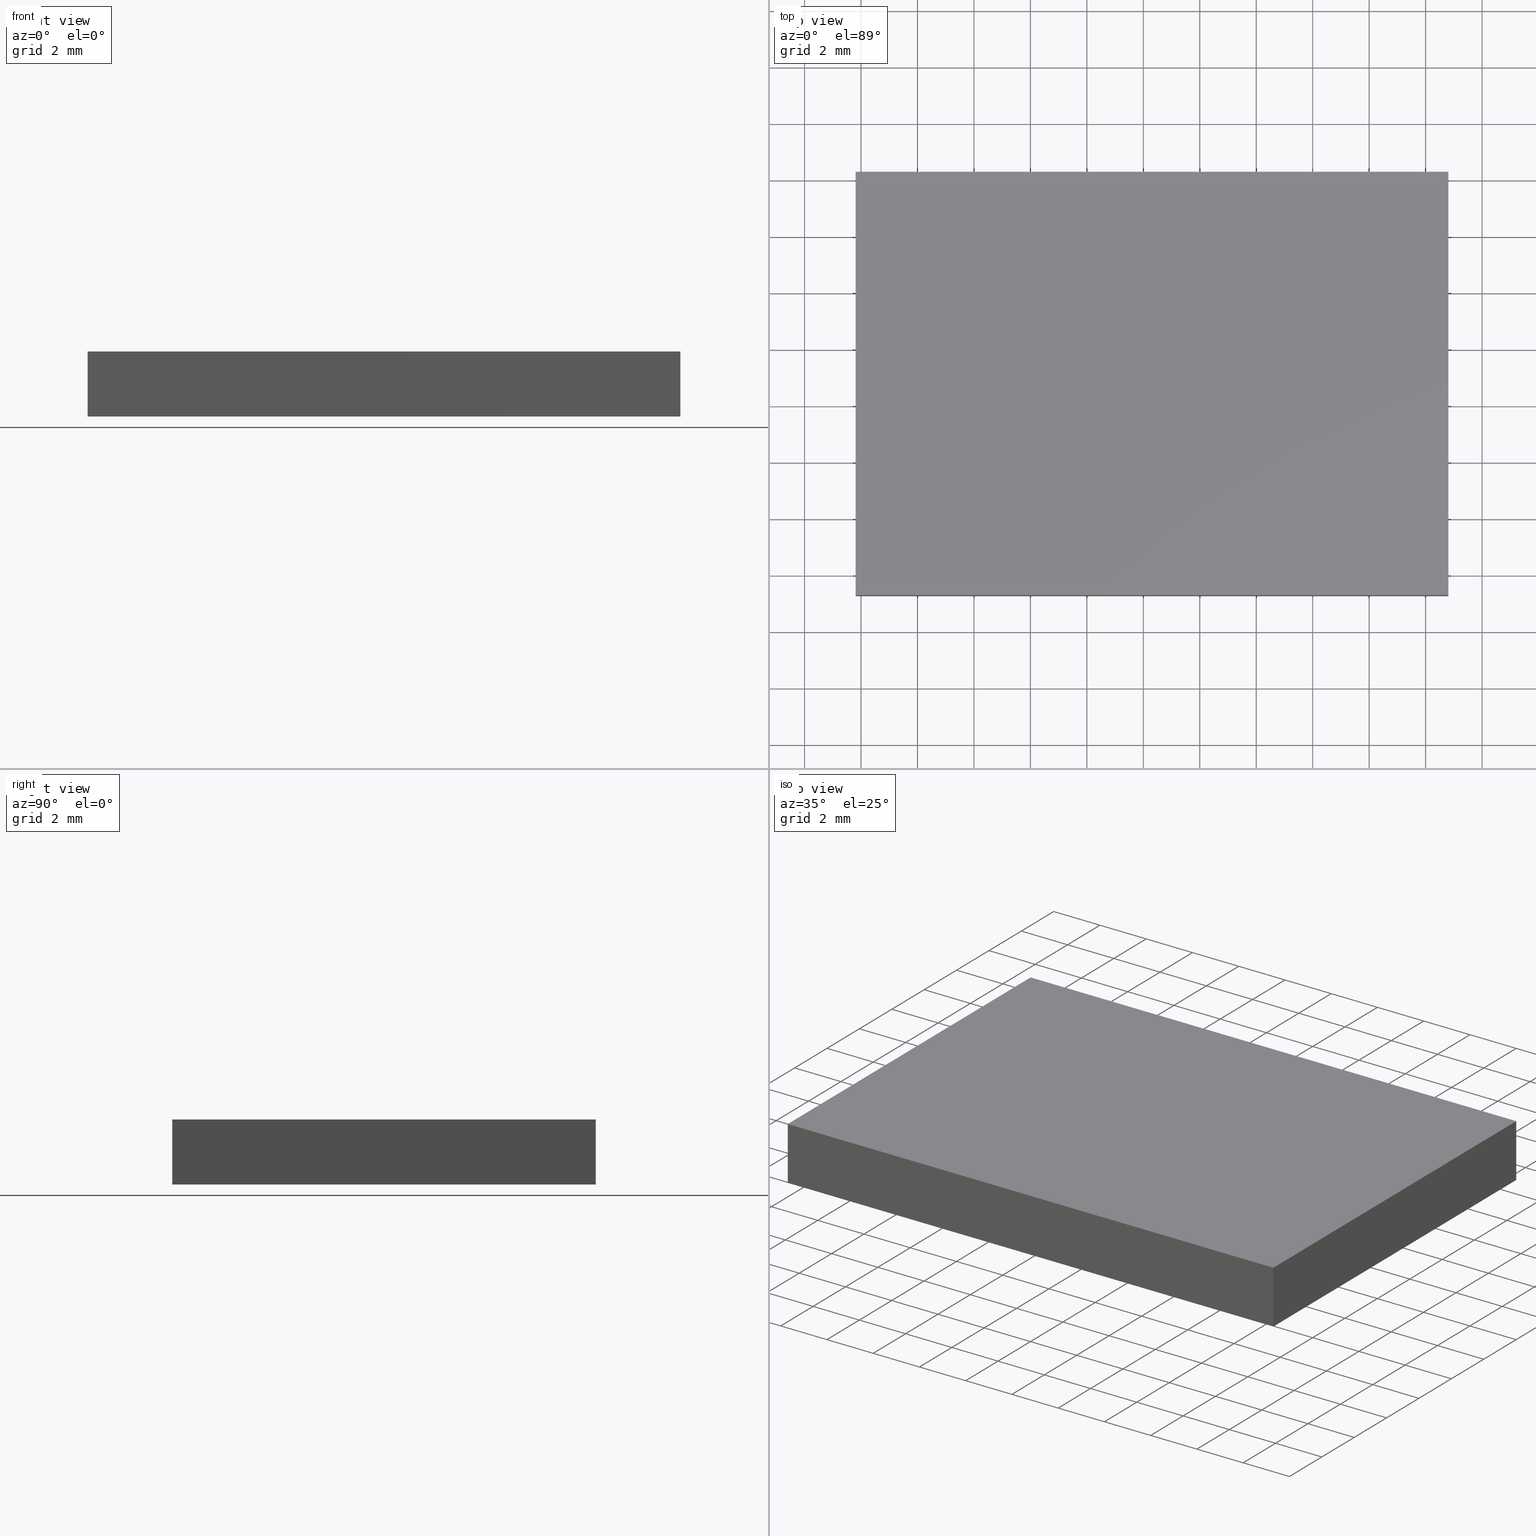
[diagram: canonical four-view strip — front | top / right | iso, engineering-drawing reading convention]
A machine part, canonical four-view strip (front | top / right | iso — engineering-drawing reading convention). The complete STEP part file that produces these views, byte-faithful:
ISO-10303-21;
HEADER;
FILE_DESCRIPTION (( 'STEP AP214' ),
    '1' );
FILE_NAME ('302512.STEP',
    '2019-08-13T05:50:09',
    ( '' ),
    ( '' ),
    'SwSTEP 2.0',
    'SolidWorks 2016',
    '' );
FILE_SCHEMA (( 'AUTOMOTIVE_DESIGN' ));
ENDSEC;

DATA;
#1 = FILL_AREA_STYLE_COLOUR ( '', #38 ) ;
#2 = PLANE ( 'NONE',  #80 ) ;
#3 = LINE ( 'NONE', #167, #125 ) ;
#4 = STYLED_ITEM ( 'NONE', ( #193 ), #155 ) ;
#5 = ORIENTED_EDGE ( 'NONE', *, *, #173, .F. ) ;
#6 =( NAMED_UNIT ( * ) PLANE_ANGLE_UNIT ( ) SI_UNIT ( $, .RADIAN. ) );
#7 = ORIENTED_EDGE ( 'NONE', *, *, #115, .T. ) ;
#8 =( NAMED_UNIT ( * ) SI_UNIT ( $, .STERADIAN. ) SOLID_ANGLE_UNIT ( ) );
#9 = LINE ( 'NONE', #174, #165 ) ;
#10 =( GEOMETRIC_REPRESENTATION_CONTEXT ( 3 ) GLOBAL_UNCERTAINTY_ASSIGNED_CONTEXT ( ( #137 ) ) GLOBAL_UNIT_ASSIGNED_CONTEXT ( ( #121, #58, #8 ) ) REPRESENTATION_CONTEXT ( 'NONE', 'WORKASPACE' ) );
#11 = EDGE_CURVE ( 'NONE', #113, #168, #45, .T. ) ;
#12 = ORIENTED_EDGE ( 'NONE', *, *, #41, .T. ) ;
#13 = DIRECTION ( 'NONE',  ( 0.0000000000000000000, -0.0000000000000000000, -1.000000000000000000 ) ) ;
#14 = EDGE_LOOP ( 'NONE', ( #120, #12, #157, #172 ) ) ;
#15 = PRODUCT_DEFINITION_SHAPE ( 'NONE', 'NONE',  #30 ) ;
#16 =( GEOMETRIC_REPRESENTATION_CONTEXT ( 3 ) GLOBAL_UNCERTAINTY_ASSIGNED_CONTEXT ( ( #162 ) ) GLOBAL_UNIT_ASSIGNED_CONTEXT ( ( #81, #21, #54 ) ) REPRESENTATION_CONTEXT ( 'NONE', 'WORKASPACE' ) );
#17 = CARTESIAN_POINT ( 'NONE',  ( 43.80749197114183600, 38.28162091726329700, 2.299999999999999800 ) ) ;
#18 = ORIENTED_EDGE ( 'NONE', *, *, #115, .F. ) ;
#19 = DIRECTION ( 'NONE',  ( -4.625929269271485900E-016, 1.000000000000000000, 0.0000000000000000000 ) ) ;
#20 = CARTESIAN_POINT ( 'NONE',  ( 43.80749197114183600, 38.28162091726329700, 2.299999999999999800 ) ) ;
#21 =( NAMED_UNIT ( * ) PLANE_ANGLE_UNIT ( ) SI_UNIT ( $, .RADIAN. ) );
#22 = SHAPE_DEFINITION_REPRESENTATION ( #15, #129 ) ;
#23 = CARTESIAN_POINT ( 'NONE',  ( 64.80749197114182900, 38.28162091726329700, 0.0000000000000000000 ) ) ;
#24 = EDGE_CURVE ( 'NONE', #86, #195, #114, .T. ) ;
#25 = APPLICATION_PROTOCOL_DEFINITION ( 'draft international standard', 'automotive_design', 1998, #75 ) ;
#26 = STYLED_ITEM ( 'NONE', ( #27 ), #129 ) ;
#27 = PRESENTATION_STYLE_ASSIGNMENT (( #94 ) ) ;
#28 = COLOUR_RGB ( '',1.000000000000000000, 1.000000000000000000, 1.000000000000000000 ) ;
#29 = EDGE_LOOP ( 'NONE', ( #18, #153, #189, #43 ) ) ;
#30 = PRODUCT_DEFINITION ( 'δ֪', '', #65, #124 ) ;
#31 = VECTOR ( 'NONE', #170, 1000.000000000000000 ) ;
#32 = DIRECTION ( 'NONE',  ( 1.000000000000000000, 0.0000000000000000000, 0.0000000000000000000 ) ) ;
#33 = CARTESIAN_POINT ( 'NONE',  ( 64.80749197114184300, 23.28162091726329700, 2.299999999999999800 ) ) ;
#34 = DIRECTION ( 'NONE',  ( 0.0000000000000000000, -1.000000000000000000, 0.0000000000000000000 ) ) ;
#35 = AXIS2_PLACEMENT_3D ( 'NONE', #20, #104, #19 ) ;
#36 = DIRECTION ( 'NONE',  ( -0.0000000000000000000, -0.0000000000000000000, -1.000000000000000000 ) ) ;
#37 = VERTEX_POINT ( 'NONE', #100 ) ;
#38 = COLOUR_RGB ( '',1.000000000000000000, 1.000000000000000000, 1.000000000000000000 ) ;
#39 = DIRECTION ( 'NONE',  ( -0.0000000000000000000, -0.0000000000000000000, -1.000000000000000000 ) ) ;
#40 = CARTESIAN_POINT ( 'NONE',  ( 64.80749197114182900, 38.28162091726329700, 2.299999999999999800 ) ) ;
#41 = EDGE_CURVE ( 'NONE', #86, #47, #196, .T. ) ;
#42 = APPLICATION_CONTEXT ( 'automotive_design' ) ;
#43 = ORIENTED_EDGE ( 'NONE', *, *, #199, .F. ) ;
#44 = DIRECTION ( 'NONE',  ( 1.000000000000000000, 0.0000000000000000000, 0.0000000000000000000 ) ) ;
#45 = LINE ( 'NONE', #181, #88 ) ;
#46 = DIRECTION ( 'NONE',  ( 0.0000000000000000000, -0.0000000000000000000, 1.000000000000000000 ) ) ;
#47 = VERTEX_POINT ( 'NONE', #50 ) ;
#48 = DIRECTION ( 'NONE',  ( 0.0000000000000000000, 1.000000000000000000, 0.0000000000000000000 ) ) ;
#49 = CARTESIAN_POINT ( 'NONE',  ( 43.80749197114184300, 23.28162091726329700, 2.299999999999999800 ) ) ;
#50 = CARTESIAN_POINT ( 'NONE',  ( 64.80749197114184300, 23.28162091726329700, 2.299999999999999800 ) ) ;
#51 =( GEOMETRIC_REPRESENTATION_CONTEXT ( 3 ) GLOBAL_UNCERTAINTY_ASSIGNED_CONTEXT ( ( #176 ) ) GLOBAL_UNIT_ASSIGNED_CONTEXT ( ( #84, #6, #188 ) ) REPRESENTATION_CONTEXT ( 'NONE', 'WORKASPACE' ) );
#52 = EDGE_LOOP ( 'NONE', ( #198, #5, #160, #93 ) ) ;
#53 = DIRECTION ( 'NONE',  ( -0.0000000000000000000, 0.0000000000000000000, 1.000000000000000000 ) ) ;
#54 =( NAMED_UNIT ( * ) SI_UNIT ( $, .STERADIAN. ) SOLID_ANGLE_UNIT ( ) );
#55 = FACE_OUTER_BOUND ( 'NONE', #14, .T. ) ;
#56 = CARTESIAN_POINT ( 'NONE',  ( 43.80749197114183600, 38.28162091726329700, 2.299999999999999800 ) ) ;
#57 = DIRECTION ( 'NONE',  ( 1.000000000000000000, 0.0000000000000000000, 0.0000000000000000000 ) ) ;
#58 =( NAMED_UNIT ( * ) PLANE_ANGLE_UNIT ( ) SI_UNIT ( $, .RADIAN. ) );
#59 = FILL_AREA_STYLE_COLOUR ( '', #28 ) ;
#60 = LINE ( 'NONE', #68, #152 ) ;
#61 = CLOSED_SHELL ( 'NONE', ( #186, #91, #143, #69, #175, #74 ) ) ;
#62 = ORIENTED_EDGE ( 'NONE', *, *, #199, .T. ) ;
#63 = CARTESIAN_POINT ( 'NONE',  ( 43.80749197114183600, 38.28162091726329700, 2.299999999999999800 ) ) ;
#64 = PLANE ( 'NONE',  #144 ) ;
#65 = PRODUCT_DEFINITION_FORMATION_WITH_SPECIFIED_SOURCE ( '�κ�', '', #164, .NOT_KNOWN. ) ;
#66 = PLANE ( 'NONE',  #185 ) ;
#67 = FACE_OUTER_BOUND ( 'NONE', #161, .T. ) ;
#68 = CARTESIAN_POINT ( 'NONE',  ( 43.80749197114183600, 38.28162091726329700, 0.0000000000000000000 ) ) ;
#69 = ADVANCED_FACE ( 'NONE', ( #79 ), #64, .F. ) ;
#70 = CARTESIAN_POINT ( 'NONE',  ( 64.80749197114182900, 38.28162091726329700, 2.299999999999999800 ) ) ;
#71 = CARTESIAN_POINT ( 'NONE',  ( 43.80749197114184300, 23.28162091726329700, 0.0000000000000000000 ) ) ;
#72 = SURFACE_SIDE_STYLE ('',( #141 ) ) ;
#73 = PRODUCT_CONTEXT ( 'NONE', #75, 'mechanical' ) ;
#74 = ADVANCED_FACE ( 'NONE', ( #102 ), #200, .F. ) ;
#75 = APPLICATION_CONTEXT ( 'automotive_design' ) ;
#76 = LINE ( 'NONE', #56, #31 ) ;
#77 = EDGE_CURVE ( 'NONE', #47, #142, #90, .T. ) ;
#78 = VERTEX_POINT ( 'NONE', #132 ) ;
#79 = FACE_OUTER_BOUND ( 'NONE', #52, .T. ) ;
#80 = AXIS2_PLACEMENT_3D ( 'NONE', #105, #53, #156 ) ;
#81 =( LENGTH_UNIT ( ) NAMED_UNIT ( * ) SI_UNIT ( .MILLI., .METRE. ) );
#82 = VECTOR ( 'NONE', #154, 1000.000000000000000 ) ;
#83 = CARTESIAN_POINT ( 'NONE',  ( 64.80749197114184300, 23.28162091726329700, 0.0000000000000000000 ) ) ;
#84 =( LENGTH_UNIT ( ) NAMED_UNIT ( * ) SI_UNIT ( .MILLI., .METRE. ) );
#85 = PRESENTATION_LAYER_ASSIGNMENT (  '', '', ( #26 ) ) ;
#86 = VERTEX_POINT ( 'NONE', #49 ) ;
#87 = CARTESIAN_POINT ( 'NONE',  ( 43.80749197114184300, 23.28162091726329700, 2.299999999999999800 ) ) ;
#88 = VECTOR ( 'NONE', #133, 1000.000000000000000 ) ;
#89 = PLANE ( 'NONE',  #35 ) ;
#90 = LINE ( 'NONE', #33, #106 ) ;
#91 = ADVANCED_FACE ( 'NONE', ( #67 ), #66, .F. ) ;
#92 = DIRECTION ( 'NONE',  ( 0.0000000000000000000, 0.0000000000000000000, 1.000000000000000000 ) ) ;
#93 = ORIENTED_EDGE ( 'NONE', *, *, #11, .T. ) ;
#94 = SURFACE_STYLE_USAGE ( .BOTH. , #72 ) ;
#95 = VECTOR ( 'NONE', #39, 1000.000000000000000 ) ;
#96 = ORIENTED_EDGE ( 'NONE', *, *, #41, .F. ) ;
#97 = EDGE_CURVE ( 'NONE', #168, #78, #3, .T. ) ;
#98 = AXIS2_PLACEMENT_3D ( 'NONE', #122, #92, #57 ) ;
#99 = VECTOR ( 'NONE', #136, 1000.000000000000000 ) ;
#100 = CARTESIAN_POINT ( 'NONE',  ( 43.80749197114183600, 38.28162091726329700, 2.299999999999999800 ) ) ;
#101 = DIRECTION ( 'NONE',  ( -0.0000000000000000000, 0.0000000000000000000, 1.000000000000000000 ) ) ;
#102 = FACE_OUTER_BOUND ( 'NONE', #29, .T. ) ;
#103 = EDGE_LOOP ( 'NONE', ( #134, #146, #109, #128 ) ) ;
#104 = DIRECTION ( 'NONE',  ( 1.000000000000000000, 4.625929269271485900E-016, -0.0000000000000000000 ) ) ;
#105 = CARTESIAN_POINT ( 'NONE',  ( 0.0000000000000000000, 0.0000000000000000000, 2.299999999999999800 ) ) ;
#106 = VECTOR ( 'NONE', #36, 1000.000000000000000 ) ;
#107 = CARTESIAN_POINT ( 'NONE',  ( 43.80749197114183600, 38.28162091726329700, 2.299999999999999800 ) ) ;
#108 = VECTOR ( 'NONE', #44, 1000.000000000000000 ) ;
#109 = ORIENTED_EDGE ( 'NONE', *, *, #119, .F. ) ;
#110 = FILL_AREA_STYLE ('',( #59 ) ) ;
#111 = ORIENTED_EDGE ( 'NONE', *, *, #24, .F. ) ;
#112 = EDGE_CURVE ( 'NONE', #113, #37, #178, .T. ) ;
#113 = VERTEX_POINT ( 'NONE', #171 ) ;
#114 = LINE ( 'NONE', #87, #82 ) ;
#115 = EDGE_CURVE ( 'NONE', #78, #195, #60, .T. ) ;
#116 = DIRECTION ( 'NONE',  ( 1.000000000000000000, 0.0000000000000000000, 0.0000000000000000000 ) ) ;
#117 = SURFACE_STYLE_FILL_AREA ( #187 ) ;
#118 = SURFACE_STYLE_USAGE ( .BOTH. , #139 ) ;
#119 = EDGE_CURVE ( 'NONE', #47, #113, #159, .T. ) ;
#120 = ORIENTED_EDGE ( 'NONE', *, *, #190, .T. ) ;
#121 =( LENGTH_UNIT ( ) NAMED_UNIT ( * ) SI_UNIT ( .MILLI., .METRE. ) );
#122 = CARTESIAN_POINT ( 'NONE',  ( 0.0000000000000000000, 0.0000000000000000000, 0.0000000000000000000 ) ) ;
#123 = EDGE_LOOP ( 'NONE', ( #7, #111, #182, #202 ) ) ;
#124 = PRODUCT_DEFINITION_CONTEXT ( 'detailed design', #42, 'design' ) ;
#125 = VECTOR ( 'NONE', #148, 1000.000000000000000 ) ;
#126 = AXIS2_PLACEMENT_3D ( 'NONE', #40, #158, #201 ) ;
#127 = ORIENTED_EDGE ( 'NONE', *, *, #24, .T. ) ;
#128 = ORIENTED_EDGE ( 'NONE', *, *, #77, .T. ) ;
#129 = ADVANCED_BREP_SHAPE_REPRESENTATION ( '302512', ( #155, #98 ), #51 ) ;
#130 = CARTESIAN_POINT ( 'NONE',  ( 0.0000000000000000000, 0.0000000000000000000, 0.0000000000000000000 ) ) ;
#131 = LINE ( 'NONE', #107, #95 ) ;
#132 = CARTESIAN_POINT ( 'NONE',  ( 43.80749197114183600, 38.28162091726329700, 0.0000000000000000000 ) ) ;
#133 = DIRECTION ( 'NONE',  ( -0.0000000000000000000, -0.0000000000000000000, -1.000000000000000000 ) ) ;
#134 = ORIENTED_EDGE ( 'NONE', *, *, #177, .T. ) ;
#135 = MECHANICAL_DESIGN_GEOMETRIC_PRESENTATION_REPRESENTATION (  '', ( #26 ), #10 ) ;
#136 = DIRECTION ( 'NONE',  ( -9.251858538542971800E-016, 1.000000000000000000, -0.0000000000000000000 ) ) ;
#137 = UNCERTAINTY_MEASURE_WITH_UNIT (LENGTH_MEASURE( 1.000000000000000100E-005 ), #121, 'distance_accuracy_value', 'NONE');
#138 = CARTESIAN_POINT ( 'NONE',  ( 43.80749197114184300, 23.28162091726329700, 0.0000000000000000000 ) ) ;
#139 = SURFACE_SIDE_STYLE ('',( #117 ) ) ;
#140 = PLANE ( 'NONE',  #126 ) ;
#141 = SURFACE_STYLE_FILL_AREA ( #110 ) ;
#142 = VERTEX_POINT ( 'NONE', #83 ) ;
#143 = ADVANCED_FACE ( 'NONE', ( #194 ), #140, .F. ) ;
#144 = AXIS2_PLACEMENT_3D ( 'NONE', #17, #34, #13 ) ;
#145 = VECTOR ( 'NONE', #163, 1000.000000000000000 ) ;
#146 = ORIENTED_EDGE ( 'NONE', *, *, #11, .F. ) ;
#147 = FACE_OUTER_BOUND ( 'NONE', #123, .T. ) ;
#148 = DIRECTION ( 'NONE',  ( -1.000000000000000000, -0.0000000000000000000, -0.0000000000000000000 ) ) ;
#149 = AXIS2_PLACEMENT_3D ( 'NONE', #130, #101, #116 ) ;
#150 = CARTESIAN_POINT ( 'NONE',  ( 43.80749197114184300, 23.28162091726329700, 2.299999999999999800 ) ) ;
#151 = CARTESIAN_POINT ( 'NONE',  ( 43.80749197114184300, 23.28162091726329700, 2.299999999999999800 ) ) ;
#152 = VECTOR ( 'NONE', #169, 1000.000000000000000 ) ;
#153 = ORIENTED_EDGE ( 'NONE', *, *, #97, .F. ) ;
#154 = DIRECTION ( 'NONE',  ( -0.0000000000000000000, -0.0000000000000000000, -1.000000000000000000 ) ) ;
#155 = MANIFOLD_SOLID_BREP ( '͹̨-����1', #61 ) ;
#156 = DIRECTION ( 'NONE',  ( 1.000000000000000000, 0.0000000000000000000, 0.0000000000000000000 ) ) ;
#157 = ORIENTED_EDGE ( 'NONE', *, *, #119, .T. ) ;
#158 = DIRECTION ( 'NONE',  ( -1.000000000000000000, -9.251858538542971800E-016, 0.0000000000000000000 ) ) ;
#159 = LINE ( 'NONE', #70, #99 ) ;
#160 = ORIENTED_EDGE ( 'NONE', *, *, #112, .F. ) ;
#161 = EDGE_LOOP ( 'NONE', ( #62, #179, #96, #127 ) ) ;
#162 = UNCERTAINTY_MEASURE_WITH_UNIT (LENGTH_MEASURE( 1.000000000000000100E-005 ), #81, 'distance_accuracy_value', 'NONE');
#163 = DIRECTION ( 'NONE',  ( -1.000000000000000000, -0.0000000000000000000, -0.0000000000000000000 ) ) ;
#164 = PRODUCT ( '302512', '302512', '', ( #73 ) ) ;
#165 = VECTOR ( 'NONE', #183, 1000.000000000000000 ) ;
#166 = VECTOR ( 'NONE', #32, 1000.000000000000000 ) ;
#167 = CARTESIAN_POINT ( 'NONE',  ( 43.80749197114183600, 38.28162091726329700, 0.0000000000000000000 ) ) ;
#168 = VERTEX_POINT ( 'NONE', #23 ) ;
#169 = DIRECTION ( 'NONE',  ( 4.625929269271485900E-016, -1.000000000000000000, 0.0000000000000000000 ) ) ;
#170 = DIRECTION ( 'NONE',  ( 4.625929269271485900E-016, -1.000000000000000000, 0.0000000000000000000 ) ) ;
#171 = CARTESIAN_POINT ( 'NONE',  ( 64.80749197114182900, 38.28162091726329700, 2.299999999999999800 ) ) ;
#172 = ORIENTED_EDGE ( 'NONE', *, *, #112, .T. ) ;
#173 = EDGE_CURVE ( 'NONE', #37, #78, #131, .T. ) ;
#174 = CARTESIAN_POINT ( 'NONE',  ( 64.80749197114182900, 38.28162091726329700, 0.0000000000000000000 ) ) ;
#175 = ADVANCED_FACE ( 'NONE', ( #55 ), #2, .T. ) ;
#176 = UNCERTAINTY_MEASURE_WITH_UNIT (LENGTH_MEASURE( 1.000000000000000100E-005 ), #84, 'distance_accuracy_value', 'NONE');
#177 = EDGE_CURVE ( 'NONE', #142, #168, #9, .T. ) ;
#178 = LINE ( 'NONE', #63, #145 ) ;
#179 = ORIENTED_EDGE ( 'NONE', *, *, #77, .F. ) ;
#180 = PRESENTATION_LAYER_ASSIGNMENT (  '', '', ( #4 ) ) ;
#181 = CARTESIAN_POINT ( 'NONE',  ( 64.80749197114182900, 38.28162091726329700, 2.299999999999999800 ) ) ;
#182 = ORIENTED_EDGE ( 'NONE', *, *, #190, .F. ) ;
#183 = DIRECTION ( 'NONE',  ( -9.251858538542971800E-016, 1.000000000000000000, -0.0000000000000000000 ) ) ;
#184 = LINE ( 'NONE', #138, #108 ) ;
#185 = AXIS2_PLACEMENT_3D ( 'NONE', #150, #48, #46 ) ;
#186 = ADVANCED_FACE ( 'NONE', ( #147 ), #89, .F. ) ;
#187 = FILL_AREA_STYLE ('',( #1 ) ) ;
#188 =( NAMED_UNIT ( * ) SI_UNIT ( $, .STERADIAN. ) SOLID_ANGLE_UNIT ( ) );
#189 = ORIENTED_EDGE ( 'NONE', *, *, #177, .F. ) ;
#190 = EDGE_CURVE ( 'NONE', #37, #86, #76, .T. ) ;
#191 = APPLICATION_PROTOCOL_DEFINITION ( 'draft international standard', 'automotive_design', 1998, #42 ) ;
#192 = PRODUCT_RELATED_PRODUCT_CATEGORY ( 'part', '', ( #164 ) ) ;
#193 = PRESENTATION_STYLE_ASSIGNMENT (( #118 ) ) ;
#194 = FACE_OUTER_BOUND ( 'NONE', #103, .T. ) ;
#195 = VERTEX_POINT ( 'NONE', #71 ) ;
#196 = LINE ( 'NONE', #151, #166 ) ;
#197 = MECHANICAL_DESIGN_GEOMETRIC_PRESENTATION_REPRESENTATION (  '', ( #4 ), #16 ) ;
#198 = ORIENTED_EDGE ( 'NONE', *, *, #97, .T. ) ;
#199 = EDGE_CURVE ( 'NONE', #195, #142, #184, .T. ) ;
#200 = PLANE ( 'NONE',  #149 ) ;
#201 = DIRECTION ( 'NONE',  ( 9.251858538542971800E-016, -1.000000000000000000, 0.0000000000000000000 ) ) ;
#202 = ORIENTED_EDGE ( 'NONE', *, *, #173, .T. ) ;
ENDSEC;
END-ISO-10303-21;
